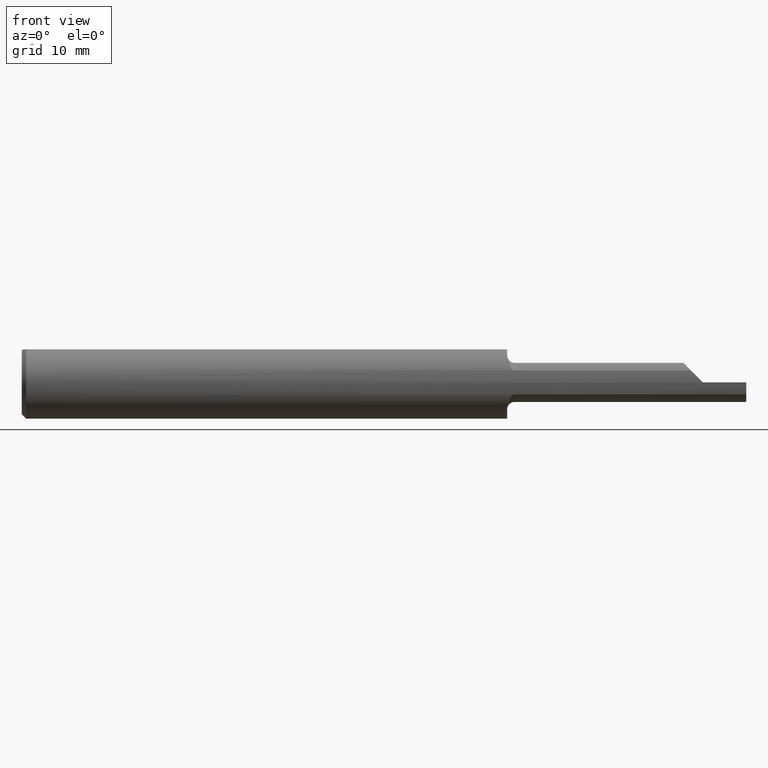
[diagram: clean part render]
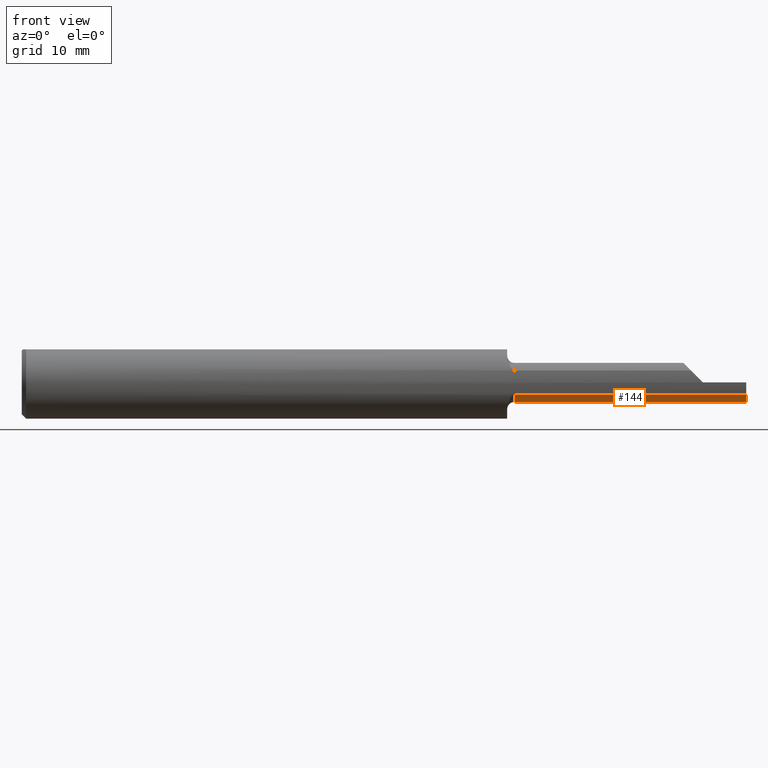
[diagram: same view with one face highlighted and labeled with its STEP entity id]
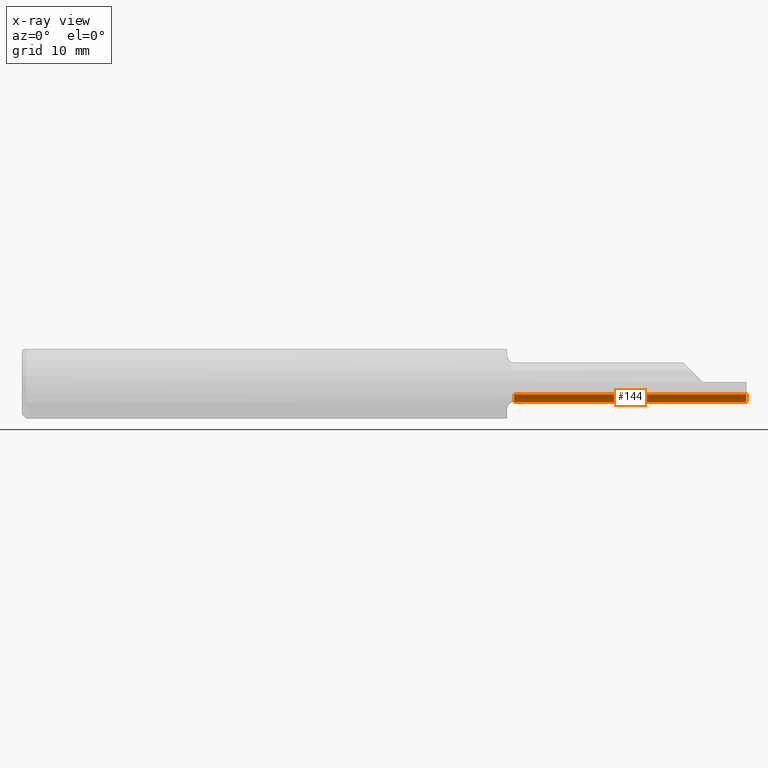
[diagram: x-ray of the same camera — body ghosted, the highlighted face saturated]
A machine part, front view. The second image highlights one B-rep face of the part: STEP entity #144.
The next image is the same camera in x-ray: the body ghosted, the highlighted face saturated — about 0% of this face is hidden behind the body in this view.
In plain terms, the highlighted cylindrical surface (edge-blend (fillet) strip) has radius 1.7145 mm, axis along (-1, -0, -0).
Its self-contained STEP definition (entity closure, byte-faithful):
#16 = EDGE_CURVE ( 'NONE', #265, #40, #671, .T. ) ;
#24 = DIRECTION ( 'NONE',  ( -1.000000000000000000, -0.000000000000000000, -0.000000000000000000 ) ) ;
#26 = DIRECTION ( 'NONE',  ( 1.000000000000000000, -0.000000000000000000, -0.000000000000000000 ) ) ;
#40 = VERTEX_POINT ( 'NONE', #212 ) ;
#89 = DIRECTION ( 'NONE',  ( 0.000000000000000000, 0.000000000000000000, 1.000000000000000000 ) ) ;
#111 = CARTESIAN_POINT ( 'NONE',  ( 2.500000000000000000, -0.06435000000000003217, 0.000000000000000000 ) ) ;
#144 = ADVANCED_FACE ( 'NONE', ( #160 ), #403, .T. ) ;
#160 = FACE_OUTER_BOUND ( 'NONE', #350, .T. ) ;
#161 = DIRECTION ( 'NONE',  ( -1.000000000000000000, -0.000000000000000000, -0.000000000000000000 ) ) ;
#200 = CARTESIAN_POINT ( 'NONE',  ( 2.498524702252900909, -0.07335304073178651463, -0.06704894329466547231 ) ) ;
#212 = CARTESIAN_POINT ( 'NONE',  ( 1.699999999999999956, -0.06435000000000003217, -0.06750000000000001832 ) ) ;
#239 = AXIS2_PLACEMENT_3D ( 'NONE', #407, #257, #561 ) ;
#257 = DIRECTION ( 'NONE',  ( 1.000000000000000000, 0.000000000000000000, 0.000000000000000000 ) ) ;
#261 = ORIENTED_EDGE ( 'NONE', *, *, #706, .F. ) ;
#265 = VERTEX_POINT ( 'NONE', #631 ) ;
#298 = AXIS2_PLACEMENT_3D ( 'NONE', #111, #26, #416 ) ;
#301 = CIRCLE ( 'NONE', #239, 0.06750000000000001832 ) ;
#324 = CARTESIAN_POINT ( 'NONE',  ( 2.500000000000000000, -0.07777569386178065369, -0.06615134726012476818 ) ) ;
#350 = EDGE_LOOP ( 'NONE', ( #467, #261, #611, #454, #547, #533 ) ) ;
#403 = CYLINDRICAL_SURFACE ( 'NONE', #750, 0.06750000000000001832 ) ;
#407 = CARTESIAN_POINT ( 'NONE',  ( 1.699999999999999956, -0.06435000000000003217, 0.000000000000000000 ) ) ;
#411 = VECTOR ( 'NONE', #161, 39.37007874015748143 ) ;
#416 = DIRECTION ( 'NONE',  ( 0.000000000000000000, 0.000000000000000000, 1.000000000000000000 ) ) ;
#424 = CARTESIAN_POINT ( 'NONE',  ( 2.500000000000000000, -0.1178880730380729852, -0.04110869415792685333 ) ) ;
#449 = VERTEX_POINT ( 'NONE', #424 ) ;
#454 = ORIENTED_EDGE ( 'NONE', *, *, #851, .F. ) ;
#455 = LINE ( 'NONE', #776, #411 ) ;
#461 = CARTESIAN_POINT ( 'NONE',  ( 1.675000000000000044, -0.06435000000000003217, 0.000000000000000000 ) ) ;
#467 = ORIENTED_EDGE ( 'NONE', *, *, #16, .F. ) ;
#530 = LINE ( 'NONE', #543, #936 ) ;
#533 = ORIENTED_EDGE ( 'NONE', *, *, #914, .T. ) ;
#539 = VERTEX_POINT ( 'NONE', #940 ) ;
#543 = CARTESIAN_POINT ( 'NONE',  ( 2.500000000000000000, -0.06435000000000004605, -0.06750000000000001832 ) ) ;
#547 = ORIENTED_EDGE ( 'NONE', *, *, #734, .T. ) ;
#549 = VERTEX_POINT ( 'NONE', #575 ) ;
#561 = DIRECTION ( 'NONE',  ( 0.000000000000000000, 0.000000000000000000, -1.000000000000000000 ) ) ;
#575 = CARTESIAN_POINT ( 'NONE',  ( 2.500000000000000000, -0.07777569386178065369, -0.06615134726012476818 ) ) ;
#604 = VECTOR ( 'NONE', #747, 39.37007874015748143 ) ;
#606 =( BOUNDED_CURVE ( )  B_SPLINE_CURVE ( 3, ( #644, #863, #200, #324 ),
 .UNSPECIFIED., .F., .T. ) 
 B_SPLINE_CURVE_WITH_KNOTS ( ( 4, 4 ),
 ( 0.6108652381980129720, 0.8110997559319969019 ),
 .UNSPECIFIED. ) 
 CURVE ( )  GEOMETRIC_REPRESENTATION_ITEM ( )  RATIONAL_B_SPLINE_CURVE ( ( 1.000000000000000000, 0.9966616347228353101, 0.9966616347228353101, 1.000000000000000000 ) ) 
 REPRESENTATION_ITEM ( '' )  );
#611 = ORIENTED_EDGE ( 'NONE', *, *, #845, .T. ) ;
#628 = DIRECTION ( 'NONE',  ( -1.000000000000000000, -0.000000000000000000, -0.000000000000000000 ) ) ;
#631 = CARTESIAN_POINT ( 'NONE',  ( 2.450000000000000178, -0.06435000000000004605, -0.06750000000000001832 ) ) ;
#644 = CARTESIAN_POINT ( 'NONE',  ( 2.496029762434592403, -0.06435000000000004605, -0.06750000000000001832 ) ) ;
#671 = LINE ( 'NONE', #969, #604 ) ;
#706 = EDGE_CURVE ( 'NONE', #822, #265, #530, .T. ) ;
#734 = EDGE_CURVE ( 'NONE', #449, #539, #455, .T. ) ;
#747 = DIRECTION ( 'NONE',  ( -1.000000000000000000, -0.000000000000000000, -0.000000000000000000 ) ) ;
#750 = AXIS2_PLACEMENT_3D ( 'NONE', #461, #628, #89 ) ;
#776 = CARTESIAN_POINT ( 'NONE',  ( 2.062500000000000000, -0.1178880730380729852, -0.04110869415792685333 ) ) ;
#783 = CARTESIAN_POINT ( 'NONE',  ( 2.496029762434592403, -0.06435000000000004605, -0.06750000000000001832 ) ) ;
#822 = VERTEX_POINT ( 'NONE', #783 ) ;
#845 = EDGE_CURVE ( 'NONE', #822, #549, #606, .T. ) ;
#851 = EDGE_CURVE ( 'NONE', #449, #549, #905, .T. ) ;
#863 = CARTESIAN_POINT ( 'NONE',  ( 2.497196856898272532, -0.06886281944569799807, -0.06750000000000000444 ) ) ;
#905 = CIRCLE ( 'NONE', #298, 0.06750000000000001832 ) ;
#914 = EDGE_CURVE ( 'NONE', #539, #40, #301, .T. ) ;
#936 = VECTOR ( 'NONE', #24, 39.37007874015748143 ) ;
#940 = CARTESIAN_POINT ( 'NONE',  ( 1.699999999999999956, -0.1178880730380729852, -0.04110869415792685333 ) ) ;
#969 = CARTESIAN_POINT ( 'NONE',  ( 1.675000000000000044, -0.06435000000000003217, -0.06750000000000001832 ) ) ;